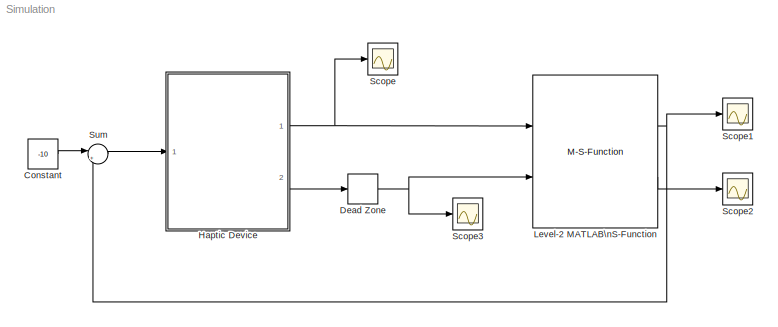
MODEL Simulation
KIND model
BLOCK [Constant] Constant
  SID = 17
  Value = -10
BLOCK [DeadZone] Dead Zone
  LowerValue = -0.02
  SID = 24
  UpperValue = 0.02
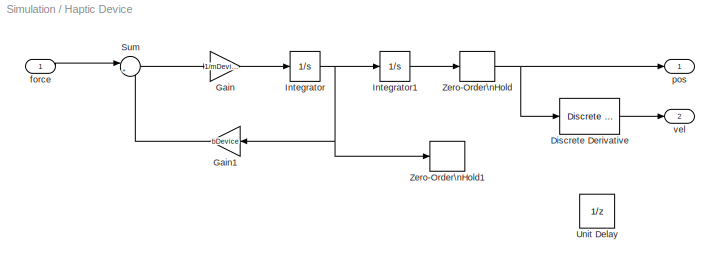
BLOCK [SubSystem] Haptic Device
  Ports = [1, 2]
  RequestExecContextInheritance = off
  SID = 11
  Variant = off
BLOCK [Reference] Haptic Device/Discrete Derivative  REF=simulink/Discrete/Discrete Derivative
  DoSatur = off
  ICPrevScaledInput = 0.0
  InputProcessing = Inherited
  LockScale = off
  OutDataType = fixdt(1, 16)
  OutDataTypeStr = Inherit: Inherit via internal rule
  OutMax = []
  OutMin = []
  OutScaling = 2^-10
  OutputDataTypeScalingMode = Inherit via internal rule
  Ports = [1, 1]
  RndMeth = Floor
  SID = 30
  SourceBlock = simulink/Discrete/Discrete Derivative
  SourceType = Discrete Derivative
  gainval = 1.0
BLOCK [Gain] Haptic Device/Gain
  Gain = 1/mDevice
  OutDataTypeStr = Inherit: Inherit via internal rule
  ParamDataTypeStr = Inherit: Inherit via internal rule
  SID = 3
  SaturateOnIntegerOverflow = off
BLOCK [Gain] Haptic Device/Gain1
  Gain = bDevice
  OutDataTypeStr = Inherit: Inherit via internal rule
  ParamDataTypeStr = Inherit: Inherit via internal rule
  SID = 7
  SaturateOnIntegerOverflow = off
BLOCK [Integrator] Haptic Device/Integrator
  InitialCondition = v0
  Ports = [1, 1]
  SID = 4
BLOCK [Integrator] Haptic Device/Integrator1
  InitialCondition = p0
  Ports = [1, 1]
  SID = 6
BLOCK [Sum] Haptic Device/Sum
  IconShape = round
  InputSameDT = off
  Inputs = |+-
  OutDataTypeStr = Inherit: Inherit via internal rule
  Ports = [2, 1]
  SID = 5
  SaturateOnIntegerOverflow = off
BLOCK [UnitDelay] Haptic Device/Unit Delay
  InputProcessing = Elements as channels (sample based)
  SID = 29
  SampleTime = -1
BLOCK [ZeroOrderHold] Haptic Device/Zero-Order\nHold
  SID = 8
  SampleTime = tsampling
BLOCK [ZeroOrderHold] Haptic Device/Zero-Order\nHold1
  SID = 33
  SampleTime = tsampling
BLOCK [Inport] Haptic Device/force
  IconDisplay = Port number
  SID = 12
BLOCK [Outport] Haptic Device/pos
  IconDisplay = Port number
  SID = 13
BLOCK [Outport] Haptic Device/vel
  IconDisplay = Port number
  Port = 2
  SID = 31
BLOCK [M-S-Function] Level-2 MATLAB\nS-Function
  FunctionName = VirtualEnvironment
  Parameters = sWall, nWall, xWall, pWall, dxWall, dof, tsampling, p0
  Ports = [2, 2]
  SID = 15
BLOCK [Scope] Scope
  Ports = [1]
  SID = 18
  ScopeSpecificationString = Simulink.scopes.TimeScopeBlockCfg('CurrentConfiguration', extmgr.ConfigurationSet(extmgr.Configuration('Core','General UI',true),extmgr.Configuration('Core','Source UI',true),extmgr.Configuration('Sources','WiredSimulink',true),extmgr.Configuration('Visuals','Time Domain',true,'SerializedDisplays',{struct('MinYLimReal','-0.13708','MaxYLimReal','1.12634','YLabelReal','','MinYLimMag','0.00000','MaxY...<+1433ch>
BLOCK [Scope] Scope1
  Ports = [1]
  SID = 19
  ScopeSpecificationString = Simulink.scopes.TimeScopeBlockCfg('CurrentConfiguration', extmgr.ConfigurationSet(extmgr.Configuration('Core','General UI',true),extmgr.Configuration('Core','Source UI',true),extmgr.Configuration('Sources','WiredSimulink',true,'DataLoggingVariableName','ScopeData1'),extmgr.Configuration('Visuals','Time Domain',true,'SerializedDisplays',{struct('MinYLimReal','-12.0757','MaxYLimReal','31.87275','YLa...<+1488ch>
BLOCK [Scope] Scope2
  Ports = [1]
  SID = 22
  ScopeSpecificationString = Simulink.scopes.TimeScopeBlockCfg('CurrentConfiguration', extmgr.ConfigurationSet(extmgr.Configuration('Core','General UI',true),extmgr.Configuration('Core','Source UI',true),extmgr.Configuration('Sources','WiredSimulink',true,'DataLoggingVariableName','ScopeData2'),extmgr.Configuration('Visuals','Time Domain',true,'SerializedDisplays',{struct('MinYLimReal','-2500.00000','MaxYLimReal','22500.00000...<+1510ch>
BLOCK [Scope] Scope3
  Ports = [1]
  SID = 23
  ScopeSpecificationString = Simulink.scopes.TimeScopeBlockCfg('CurrentConfiguration', extmgr.ConfigurationSet(extmgr.Configuration('Core','General UI',true),extmgr.Configuration('Core','Source UI',true),extmgr.Configuration('Sources','WiredSimulink',true,'DataLoggingVariableName','ScopeData1'),extmgr.Configuration('Visuals','Time Domain',true,'SerializedDisplays',{struct('MinYLimReal','-0.82126','MaxYLimReal','0.58474','YLab...<+1470ch>
BLOCK [Sum] Sum
  IconShape = round
  InputSameDT = off
  Inputs = |++
  OutDataTypeStr = Inherit: Inherit via internal rule
  Ports = [2, 1]
  SID = 16
  SaturateOnIntegerOverflow = off
LINE Constant:1 -> Sum:1
NET Dead Zone:1 -> Level-2 MATLAB\nS-Function:2, Scope3:1
LINE Haptic Device/Discrete Derivative:1 -> Haptic Device/vel:1
LINE Haptic Device/Gain1:1 -> Haptic Device/Sum:2
LINE Haptic Device/Gain:1 -> Haptic Device/Integrator:1
LINE Haptic Device/Integrator1:1 -> Haptic Device/Zero-Order\nHold:1
NET Haptic Device/Integrator:1 -> Haptic Device/Gain1:1, Haptic Device/Integrator1:1, Haptic Device/Zero-Order\nHold1:1
LINE Haptic Device/Sum:1 -> Haptic Device/Gain:1
NET Haptic Device/Zero-Order\nHold:1 -> Haptic Device/Discrete Derivative:1, Haptic Device/pos:1
LINE Haptic Device/force:1 -> Haptic Device/Sum:1
NET Haptic Device:1 -> Level-2 MATLAB\nS-Function:1, Scope:1
LINE Haptic Device:2 -> Dead Zone:1
NET Level-2 MATLAB\nS-Function:1 -> Scope1:1, Sum:2
LINE Level-2 MATLAB\nS-Function:2 -> Scope2:1
LINE Sum:1 -> Haptic Device:1
note: NET lines group one-source signal fan-out (src -> all destinations, sorted); 1:1 wires keep LINE
